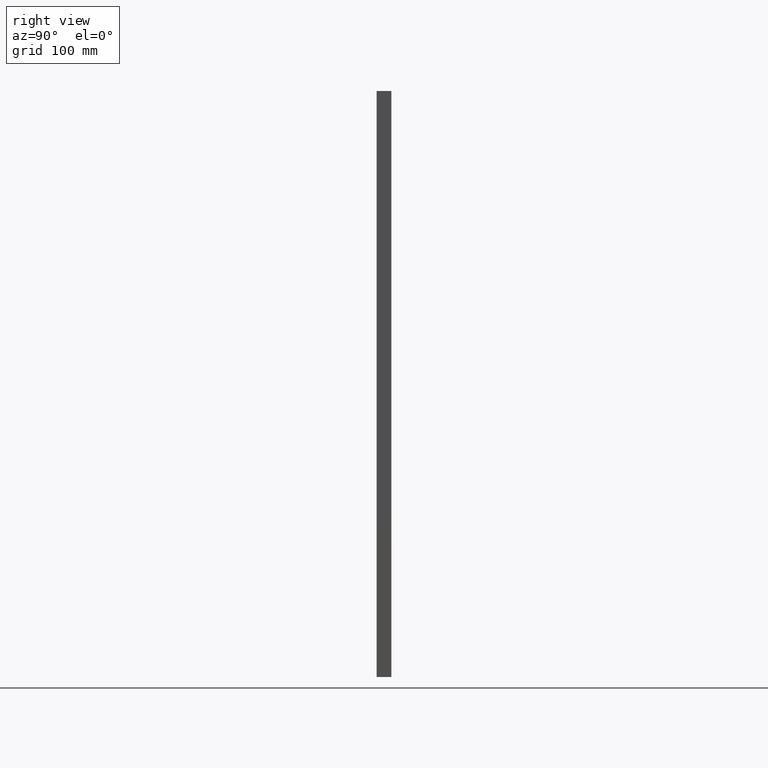
[diagram: clean part render]
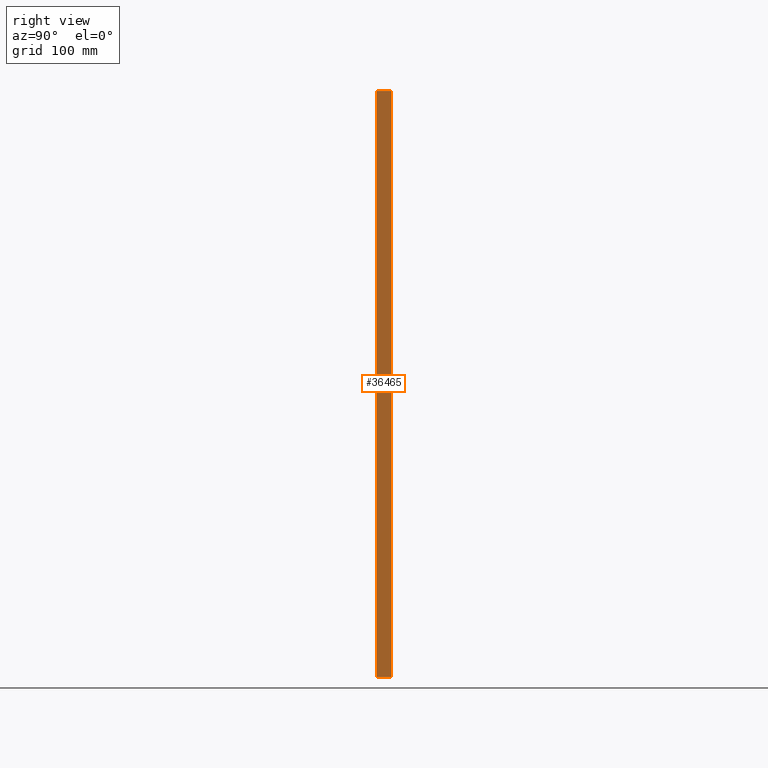
[diagram: same view with one face highlighted and labeled with its STEP entity id]
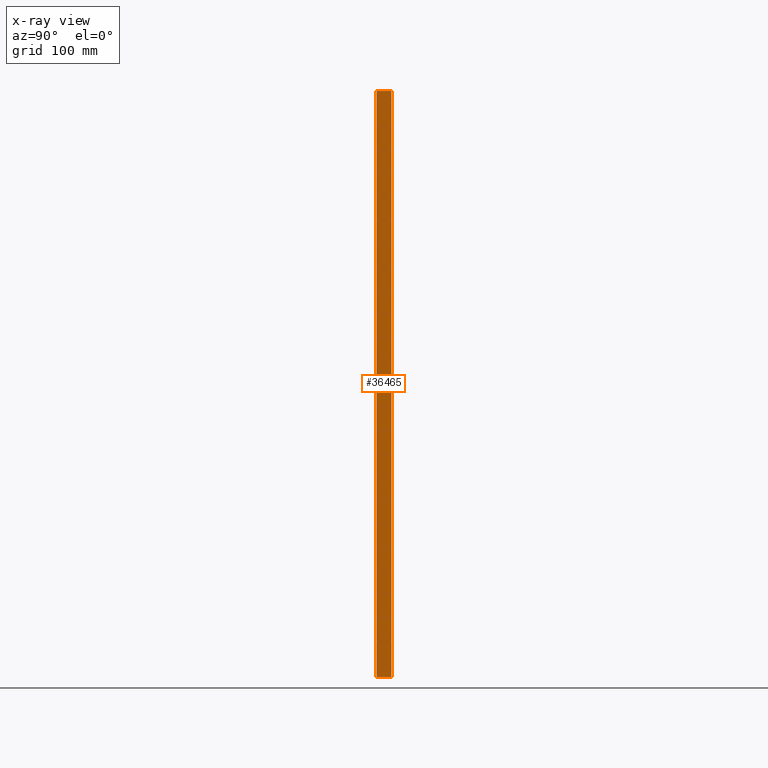
[diagram: x-ray of the same camera — body ghosted, the highlighted face saturated]
A machine part, right view. The second image highlights one B-rep face of the part: STEP entity #36465.
The next image is the same camera in x-ray: the body ghosted, the highlighted face saturated — about 0% of this face is hidden behind the body in this view.
In plain terms, the highlighted planar face has unit normal (1, -0, -0).
Its self-contained STEP definition (entity closure, byte-faithful):
#833 = FACE_OUTER_BOUND ( 'NONE', #68446, .T. ) ;
#1945 = LINE ( 'NONE', #61284, #35757 ) ;
#8780 = VECTOR ( 'NONE', #42052, 1000.000000000000000 ) ;
#10386 = AXIS2_PLACEMENT_3D ( 'NONE', #67238, #61640, #17563 ) ;
#14380 = CARTESIAN_POINT ( 'NONE',  ( 590.0000000000001100, -10.00000000000000000, 5.551115123125782700E-014 ) ) ;
#15122 = EDGE_CURVE ( 'NONE', #30544, #31941, #29341, .T. ) ;
#15132 = CARTESIAN_POINT ( 'NONE',  ( 590.0000000000000000, -10.00000000000000000, -790.0000000000000000 ) ) ;
#17563 = DIRECTION ( 'NONE',  ( 3.061616997868382600E-016, 1.000000000000000000, 0.0000000000000000000 ) ) ;
#18797 = ORIENTED_EDGE ( 'NONE', *, *, #34651, .T. ) ;
#23128 = EDGE_CURVE ( 'NONE', #70376, #31941, #46731, .T. ) ;
#24174 = VECTOR ( 'NONE', #26493, 1000.000000000000000 ) ;
#25834 = VECTOR ( 'NONE', #61583, 1000.000000000000000 ) ;
#26493 = DIRECTION ( 'NONE',  ( 1.405345600791337500E-016, 0.0000000000000000000, 1.000000000000000000 ) ) ;
#28779 = CARTESIAN_POINT ( 'NONE',  ( 590.0000000000000000, -10.00000000000000000, -790.0000000000000000 ) ) ;
#29341 = LINE ( 'NONE', #39311, #25834 ) ;
#30544 = VERTEX_POINT ( 'NONE', #62039 ) ;
#31941 = VERTEX_POINT ( 'NONE', #14380 ) ;
#33863 = ORIENTED_EDGE ( 'NONE', *, *, #23128, .F. ) ;
#34651 = EDGE_CURVE ( 'NONE', #70376, #49553, #1945, .T. ) ;
#35757 = VECTOR ( 'NONE', #55238, 1000.000000000000000 ) ;
#36465 = ADVANCED_FACE ( 'NONE', ( #833 ), #61174, .T. ) ;
#39311 = CARTESIAN_POINT ( 'NONE',  ( 590.0000000000001100, 9.999999999999593200, 0.0000000000000000000 ) ) ;
#41845 = ORIENTED_EDGE ( 'NONE', *, *, #15122, .T. ) ;
#42052 = DIRECTION ( 'NONE',  ( 1.405345600791337500E-016, 0.0000000000000000000, 1.000000000000000000 ) ) ;
#46731 = LINE ( 'NONE', #15132, #24174 ) ;
#49553 = VERTEX_POINT ( 'NONE', #67991 ) ;
#51834 = ORIENTED_EDGE ( 'NONE', *, *, #60534, .T. ) ;
#52926 = CARTESIAN_POINT ( 'NONE',  ( 590.0000000000001100, 10.00000000000000000, -790.0000000000000000 ) ) ;
#55238 = DIRECTION ( 'NONE',  ( 3.061616997868381700E-016, 1.000000000000000000, -3.061616997868382200E-016 ) ) ;
#60534 = EDGE_CURVE ( 'NONE', #49553, #30544, #61616, .T. ) ;
#61174 = PLANE ( 'NONE',  #10386 ) ;
#61284 = CARTESIAN_POINT ( 'NONE',  ( 590.0000000000000000, 9.999999999999833000, -790.0000000000000000 ) ) ;
#61583 = DIRECTION ( 'NONE',  ( -3.061616997868383100E-016, -1.000000000000000000, -3.061616997868382200E-016 ) ) ;
#61616 = LINE ( 'NONE', #52926, #8780 ) ;
#61640 = DIRECTION ( 'NONE',  ( 1.000000000000000000, -3.061616997868382600E-016, -1.405345600791337500E-016 ) ) ;
#62039 = CARTESIAN_POINT ( 'NONE',  ( 590.0000000000002300, 10.00000000000000200, 1.665334536937734800E-013 ) ) ;
#67238 = CARTESIAN_POINT ( 'NONE',  ( 590.0000000000000000, 9.999999999999833000, -790.0000000000000000 ) ) ;
#67991 = CARTESIAN_POINT ( 'NONE',  ( 590.0000000000001100, 10.00000000000000000, -790.0000000000000000 ) ) ;
#68446 = EDGE_LOOP ( 'NONE', ( #51834, #41845, #33863, #18797 ) ) ;
#70376 = VERTEX_POINT ( 'NONE', #28779 ) ;